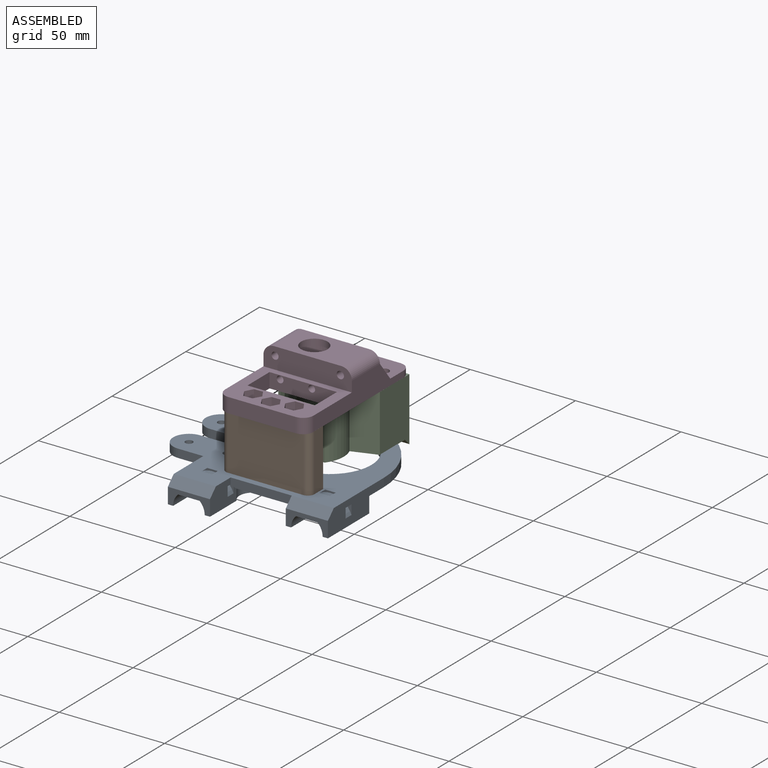
[diagram: assembled view]
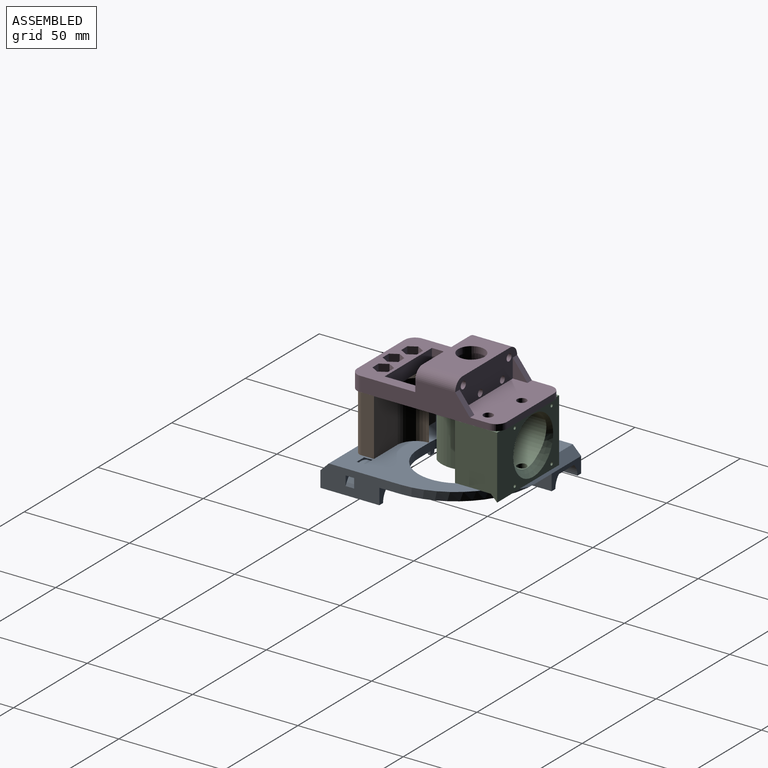
[diagram: assembled view, second angle]
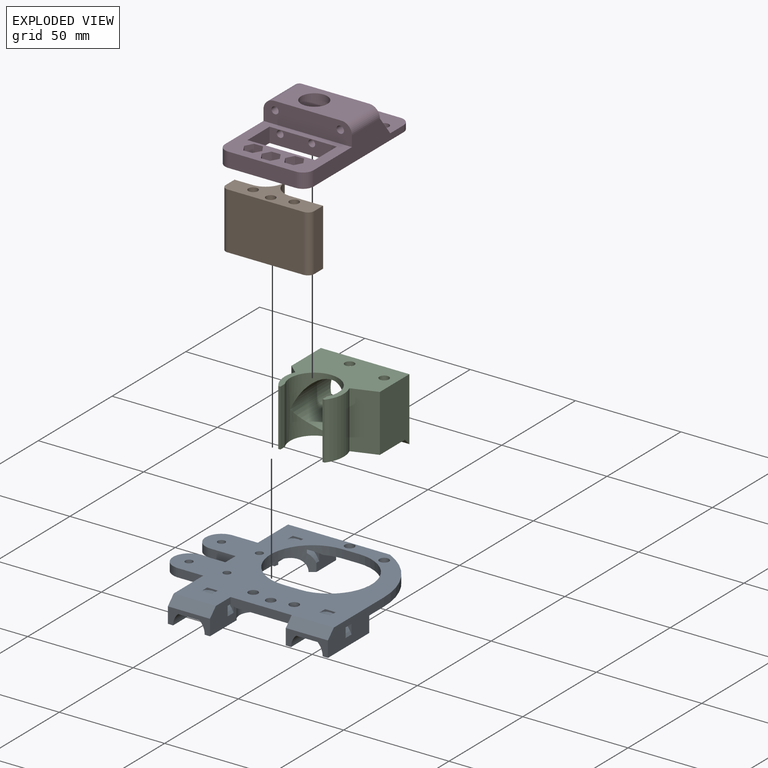
[diagram: exploded view]
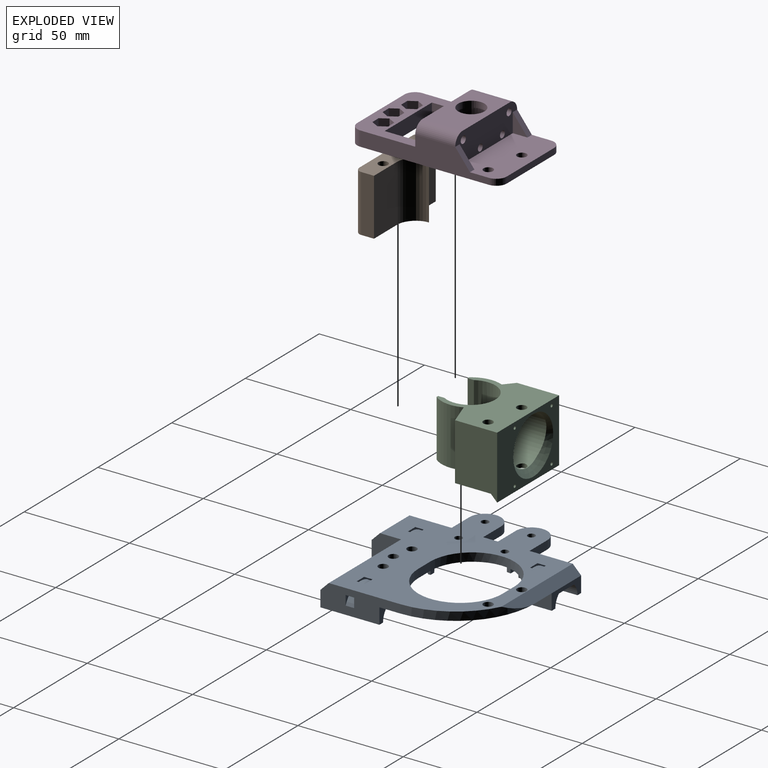
[diagram: exploded view, second angle]
ASSEMBLY  parts=4 mates=2
PART A: 107 faces, bbox 88.6x85.6x11.6 mm
  f0: plane 11.5x8.06mm, normal (-1,0,0), area 68.5mm2, adj f11,f20,f24,f25,f58,f105
  f1: plane 11.06x7.5mm, normal (-1,0,0), area 83mm2, adj f11,f20,f42,f105
  f2: plane 18.06x11.5mm, normal (1,0,0), area 167.3mm2, adj f11,f12,f23,f24,f41,f59,f66,f67
  f3: plane 7.5x1.06mm, normal (1,0,0), area 8mm2, adj f11,f40,f41,f106
  f4: plane 22.5x7.56mm, normal (0,1,0), area 27.9mm2, adj f6,f11,f12,f26,f71,f72,f105
  f5: plane 22.5x7.56mm, normal (0,-1,0), area 29.2mm2, adj f6,f11,f12,f26,f71,f72,f105
  f6: cylinder r=10.75mm len=19.27mm, axis (0,1,0), area 90.9mm2, adj f4,f5,f26,f105
  f7: cylinder r=1.75mm len=3.5mm, axis (0,0,1), area 22mm2, adj f12,f77
  f8: cylinder r=1.75mm len=3.5mm, axis (0,0,1), area 22mm2, adj f12,f98
  f9: cylinder r=1.75mm len=3.5mm, axis (0,0,1), area 22mm2, adj f12,f91
  f10: cylinder r=1.75mm len=3.5mm, axis (0,0,1), area 22mm2, adj f12,f84
  f11: plane 88.5x71.5mm, normal (0,0,-1), area 2174.4mm2, adj f0,f1,f2,f3,f4,f5,f13,f15
  f12: plane 88.5x77.5mm, normal (0,0,1), area 3442.3mm2, adj f2,f4,f5,f7,f8,f9,f10,f15
  f13: plane 13.33x7.5mm, normal (1,0,0), area 93.5mm2, adj f11,f14,f45,f62,f65,f76
  f14: plane 20x7.5mm, normal (0,1,0), area 75.6mm2, adj f13,f18,f21,f27,f45,f52,f60
  f15: cylinder r=37.5mm len=37.5mm, axis (0,0,1), area 189.2mm2, adj f11,f12,f26,f60
  f16: cylinder r=7.5mm len=28mm, axis (0,-1,0), area 614.9mm2, adj f20,f25,f42,f43,f46,f47,f56,f57
  f17: cylinder r=7.5mm len=28mm, axis (0,-1,0), area 614.9mm2, adj f19,f23,f40,f41,f48,f49,f54,f55
  f18: cylinder r=7.5mm len=28mm, axis (0,-1,0), area 514mm2, adj f14,f21,f44,f45,f50,f51,f52,f53
  f19: plane 28x2.5mm, normal (0,0,-1), area 70mm2, adj f17,f22,f23,f40
  f20: plane 28x2.5mm, normal (0,0,-1), area 59.3mm2, adj f0,f1,f16,f25,f42,f105
  f21: plane 28x2.5mm, normal (0,0,-1), area 70mm2, adj f14,f18,f27,f44
  f22: plane 28x11.5mm, normal (-1,0,0), area 279.8mm2, adj f11,f12,f19,f23,f39,f40,f59,f66
  f23: plane 20x7.5mm, normal (0,-1,0), area 75.6mm2, adj f2,f17,f19,f22,f41,f48,f59
  f24: plane 29x4mm, normal (0,-1,0), area 114.7mm2, adj f0,f2,f11,f12,f67
  f25: plane 20x7.5mm, normal (0,-1,0), area 75.6mm2, adj f0,f16,f20,f26,f43,f46,f58
  f26: plane 38x11.5mm, normal (1,0,0), area 335.8mm2, adj f4,f5,f6,f11,f12,f15,f25,f42
  f27: plane 28x11.5mm, normal (-1,0,0), area 281.8mm2, adj f11,f12,f14,f21,f28,f44,f60,f61
  f28: plane 12x4mm, normal (0,1,0), area 48mm2, adj f11,f12,f27,f29
  f29: cylinder r=7.5mm len=15mm, axis (0,0,1), area 94.2mm2, adj f11,f12,f28,f30
  f30: plane 12x4mm, normal (0,-1,0), area 48mm2, adj f11,f12,f29,f31
  f31: plane 7x4mm, normal (-1,0,0), area 28mm2, adj f11,f12,f30,f32
  f32: plane 12x4mm, normal (0,1,0), area 48mm2, adj f11,f12,f31,f33
  f33: cylinder r=7.5mm len=15mm, axis (0,0,1), area 94.2mm2, adj f11,f12,f32,f39
  f34: cylinder r=2.25mm len=4.5mm, axis (0,0,1), area 56.5mm2, adj f11,f12
  f35: cylinder r=2.25mm len=4.5mm, axis (0,0,1), area 56.5mm2, adj f11,f12
  f36: cylinder r=2.25mm len=4.5mm, axis (0,0,1), area 56.5mm2, adj f11,f12
  f37: cylinder r=2.25mm len=4.5mm, axis (0,0,1), area 56.5mm2, adj f11,f12
  f38: cylinder r=2.25mm len=4.5mm, axis (0,0,1), area 56.5mm2, adj f11,f12
  f39: plane 12x4mm, normal (0,-1,0), area 48mm2, adj f11,f12,f22,f33
  f40: plane 20x7.5mm, normal (0,1,0), area 75.6mm2, adj f3,f11,f17,f19,f22,f41,f55
  f41: plane 28x2.5mm, normal (0,0,-1), area 59.3mm2, adj f2,f3,f17,f23,f40,f106
  f42: plane 20x7.5mm, normal (0,1,0), area 75.6mm2, adj f1,f11,f16,f20,f26,f43,f57
  f43: plane 28x2.5mm, normal (0,0,-1), area 70mm2, adj f16,f25,f26,f42
  f44: plane 10.41x7.5mm, normal (0,-1,0), area 38.6mm2, adj f11,f18,f21,f27,f50,f76
  f45: plane 15.09x2.5mm, normal (0,0,-1), area 35.4mm2, adj f13,f14,f18,f76
  f46: plane 10.2x2mm, normal (0,0,-1), area 20.4mm2, adj f16,f25,f47
  f47: plane 10.2x2mm, normal (0,1,0), area 14mm2, adj f16,f46
  f48: plane 10.2x2mm, normal (0,0,-1), area 20.4mm2, adj f17,f23,f49
  f49: plane 10.2x2mm, normal (0,1,0), area 14mm2, adj f17,f48
  f50: plane 5.86x2mm, normal (0,0,-1), area 11.3mm2, adj f18,f44,f51,f76
  f51: plane 5.86x2mm, normal (0,1,0), area 8.5mm2, adj f18,f50,f76
  f52: plane 10.2x2mm, normal (0,0,-1), area 20.4mm2, adj f14,f18,f53
  f53: plane 10.2x2mm, normal (0,-1,0), area 14mm2, adj f18,f52
  f54: plane 10.2x2mm, normal (0,-1,0), area 14mm2, adj f17,f55
  f55: plane 10.2x2mm, normal (0,0,-1), area 20.4mm2, adj f17,f40,f54
  f56: plane 10.2x2mm, normal (0,-1,0), area 14mm2, adj f16,f57
  f57: plane 10.2x2mm, normal (0,0,-1), area 20.4mm2, adj f16,f42,f56
  f58: plane 20x4mm, normal (0,-0.71,0.71), area 113.1mm2, adj f0,f12,f25,f26
  f59: plane 20x4mm, normal (0,-0.71,0.71), area 113.1mm2, adj f2,f12,f22,f23
  f60: plane 48.35x4mm, normal (0,0.71,0.71), area 242.5mm2, adj f11,f12,f14,f15,f27
  f61: plane 7.5x4mm, normal (0.37,0,-0.93), area 32.3mm2, adj f12,f27,f64,f65
  f62: cylinder r=10.75mm len=20mm, axis (0,1,0), area 96.1mm2, adj f13,f27,f64,f65,f76
  f63: plane 10.11x4.11mm, normal (-0.37,0,-0.93), area 31.7mm2, adj f11,f12,f64,f65,f76
  f64: plane 17.02x7.56mm, normal (0,1,0), area 21.9mm2, adj f12,f27,f61,f62,f63,f76
  f65: plane 22.5x7.56mm, normal (0,-1,0), area 31.2mm2, adj f11,f12,f13,f27,f61,f62,f63
  f66: plane 20x7.56mm, normal (0,1,0), area 29.9mm2, adj f2,f12,f22,f67,f68,f69
  f67: plane 10x4mm, normal (-0.37,0,-0.93), area 37.7mm2, adj f2,f11,f12,f24,f66,f70
  f68: plane 7.5x4mm, normal (0.37,0,-0.93), area 32.3mm2, adj f12,f22,f66,f70
  f69: cylinder r=10.75mm len=20mm, axis (0,1,0), area 102.8mm2, adj f2,f22,f66,f70
  f70: plane 22.5x7.56mm, normal (0,-1,0), area 31.2mm2, adj f2,f11,f12,f22,f67,f68,f69
  f71: plane 7.5x4mm, normal (-0.37,0,-0.93), area 32.3mm2, adj f4,f5,f12,f26
  f72: plane 10x4mm, normal (0.37,0,-0.93), area 43.1mm2, adj f4,f5,f11,f12
  f73: plane 8x4mm, normal (0,1,0), area 32mm2, adj f11,f12,f74,f76
  f74: cylinder r=20mm len=40mm, axis (0,0,1), area 251.3mm2, adj f11,f12,f73,f75
  f75: plane 8x4mm, normal (0,-1,0), area 32mm2, adj f11,f12,f74,f76
  f76: cylinder r=20mm len=40mm, axis (0,0,1), area 285.4mm2, adj f11,f12,f13,f18,f44,f45,f50,f51
  f77: plane 6.5x5.63mm, normal (0,0,-1), area 17.8mm2, adj f7,f78,f79,f80,f81,f82,f83
  f78: plane 3.25x2mm, normal (0,-1,0), area 6.5mm2, adj f11,f77,f79,f83
  f79: plane 2.81x2mm, normal (-0.87,-0.5,0), area 6.5mm2, adj f11,f77,f78,f80
  f80: plane 2.81x2mm, normal (-0.87,0.5,0), area 6.5mm2, adj f11,f77,f79,f81
  f81: plane 3.25x2mm, normal (0,1,0), area 6.5mm2, adj f11,f77,f80,f82
  f82: plane 2.81x2mm, normal (0.87,0.5,0), area 6.5mm2, adj f11,f77,f81,f83
  f83: plane 2.81x2mm, normal (0.87,-0.5,0), area 6.5mm2, adj f11,f77,f78,f82
  f84: plane 6.5x5.63mm, normal (0,0,-1), area 17.8mm2, adj f10,f85,f86,f87,f88,f89,f90
  f85: plane 2.81x2mm, normal (-0.87,-0.5,0), area 6.5mm2, adj f11,f84,f86,f90
  f86: plane 2.81x2mm, normal (-0.87,0.5,0), area 6.5mm2, adj f11,f84,f85,f87
  f87: plane 3.25x2mm, normal (0,1,0), area 6.5mm2, adj f11,f84,f86,f88
  f88: plane 2.81x2mm, normal (0.87,0.5,0), area 6.5mm2, adj f11,f84,f87,f89
  f89: plane 2.81x2mm, normal (0.87,-0.5,0), area 6.5mm2, adj f11,f84,f88,f90
  f90: plane 3.25x2mm, normal (0,-1,0), area 6.5mm2, adj f11,f84,f85,f89
  f91: plane 6.5x5.63mm, normal (0,0,-1), area 17.8mm2, adj f9,f92,f93,f94,f95,f96,f97
  f92: plane 2.81x2mm, normal (-0.87,-0.5,0), area 6.5mm2, adj f11,f91,f93,f97
  f93: plane 2.81x2mm, normal (-0.87,0.5,0), area 6.5mm2, adj f11,f91,f92,f94
  f94: plane 3.25x2mm, normal (0,1,0), area 6.5mm2, adj f11,f91,f93,f95
  f95: plane 2.81x2mm, normal (0.87,0.5,0), area 6.5mm2, adj f11,f91,f94,f96
  f96: plane 2.81x2mm, normal (0.87,-0.5,0), area 6.5mm2, adj f11,f91,f95,f97
  f97: plane 3.25x2mm, normal (0,-1,0), area 6.5mm2, adj f11,f91,f92,f96
  f98: plane 6.5x5.63mm, normal (0,0,-1), area 17.8mm2, adj f8,f99,f100,f101,f102,f103,f104
  f99: plane 2.81x2mm, normal (-0.87,-0.5,0), area 6.5mm2, adj f11,f98,f100,f104
  f100: plane 2.81x2mm, normal (-0.87,0.5,0), area 6.5mm2, adj f11,f98,f99,f101
  f101: plane 3.25x2mm, normal (0,1,0), area 6.5mm2, adj f11,f98,f100,f102
  f102: plane 2.81x2mm, normal (0.87,0.5,0), area 6.5mm2, adj f11,f98,f101,f103
  f103: plane 2.81x2mm, normal (0.87,-0.5,0), area 6.5mm2, adj f11,f98,f102,f104
  f104: plane 3.25x2mm, normal (0,-1,0), area 6.5mm2, adj f11,f98,f99,f103
  f105: cylinder r=6.5mm len=8.87mm, axis (0,0,1), area 69mm2, adj f0,f1,f4,f5,f6,f11,f20
  f106: cylinder r=6.5mm len=8.87mm, axis (0,0,1), area 73.3mm2, adj f2,f3,f11,f41
PART B: 14 faces, bbox 42x18x27 mm
  f0: plane 27x16.19mm, normal (0,1,0), area 437mm2, adj f1,f8,f10,f11
  f1: cylinder r=9.02mm len=27mm, axis (0,0,-1), area 363.2mm2, adj f0,f2,f10,f11
  f2: cylinder r=9.02mm len=27mm, axis (0,0,-1), area 376.7mm2, adj f1,f3,f10,f11
  f3: plane 27x8.7mm, normal (0,1,0), area 234.8mm2, adj f2,f4,f10,f11
  f4: plane 27x5.94mm, normal (-1,0,0), area 160.3mm2, adj f3,f10,f11,f12
  f5: plane 36x27mm, normal (0,-1,0), area 972.1mm2, adj f10,f11,f12,f13
  f6: cylinder r=2.25mm len=27mm, axis (0,0,-1), area 381.7mm2, adj f10,f11
  f7: cylinder r=2.25mm len=27mm, axis (0,0,-1), area 381.7mm2, adj f10,f11
  f8: plane 27x6mm, normal (1,0,0), area 161.9mm2, adj f0,f10,f11,f13
  f9: cylinder r=2.25mm len=27mm, axis (0,0,-1), area 381.7mm2, adj f10,f11
  f10: plane 42x17.96mm, normal (0,0,1), area 359.7mm2, adj f0,f1,f2,f3,f4,f5,f6,f7
  f11: plane 42x17.96mm, normal (0,0,-1), area 359.7mm2, adj f0,f1,f2,f3,f4,f5,f6,f7
  f12: cylinder r=3mm len=27mm, axis (0,0,1), area 127.2mm2, adj f4,f5,f10,f11
  f13: cylinder r=3mm len=27mm, axis (0,0,1), area 127.4mm2, adj f5,f8,f10,f11
PART C: 29 faces, bbox 38.2x42x30 mm
  f0: cylinder r=2.25mm len=4.5mm, axis (0,0,-1), area 29.8mm2, adj f15,f20
  f1: plane 27x1mm, normal (-1,0,0), area 27mm2, adj f2,f14,f15,f16
  f2: cylinder r=14mm len=27mm, axis (0,0,-1), area 405.2mm2, adj f1,f3,f15,f16
  f3: plane 27x11.63mm, normal (-0.95,-0.32,0), area 332mm2, adj f2,f4,f15,f16
  f4: plane 30x20mm, normal (0,-1,0), area 544.5mm2, adj f3,f5,f15,f16,f17
  f5: plane 42x30mm, normal (1,0,0), area 680.2mm2, adj f4,f6,f15,f17,f19,f22,f24,f25
  f6: plane 30x19.97mm, normal (0,1,0), area 543.7mm2, adj f5,f7,f15,f16,f17
  f7: plane 27x4.63mm, normal (-0.76,0.65,0), area 165.5mm2, adj f6,f8,f15,f16
  f8: cylinder r=14mm len=27mm, axis (0,0,-1), area 405.2mm2, adj f7,f9,f15,f16
  f9: plane 27x1mm, normal (-1,0,0), area 27mm2, adj f8,f10,f15,f16
  f10: plane 27x2.98mm, normal (0,-1,0), area 80.5mm2, adj f9,f11,f15,f16
  f11: cylinder r=11.5mm len=27mm, axis (0,0,-1), area 764.7mm2, adj f10,f14,f15,f16,f18,f20
  f12: cylinder r=2.25mm len=4.5mm, axis (0,0,-1), area 26.4mm2, adj f16,f18
  f13: cylinder r=2.25mm len=27mm, axis (0,0,-1), area 381.7mm2, adj f15,f16
  f14: plane 27x2.98mm, normal (0,1,0), area 80.5mm2, adj f1,f11,f15,f16
  f15: plane 42x38.16mm, normal (0,0,1), area 926.9mm2, adj f0,f1,f2,f3,f4,f5,f6,f7
  f16: plane 42x35.16mm, normal (0,0,-1), area 785.3mm2, adj f1,f2,f3,f4,f6,f7,f8,f9
  f17: plane 42.04x3.04mm, normal (-0.71,0,-0.71), area 173.7mm2, adj f4,f5,f6,f16,f22,f24
  f18: cylinder r=10.5mm len=17.09mm, axis (1,0,0), area 208.6mm2, adj f11,f12,f19,f20
  f19: cone r=10.5mm half-angle=45deg, axis (1,0,0), area 219mm2, adj f5,f18,f20
  f20: cylinder r=11.5mm len=28.75mm, axis (1,0,0), area 1225.6mm2, adj f0,f11,f18,f19
  f21: plane 1.12x0.25mm, normal (1,0,0), area 0.2mm2, adj f16,f22
  f22: cylinder r=0.75mm len=10mm, axis (1,0,0), area 20.4mm2, adj f5,f16,f17,f21
  f23: plane 1.12x0.25mm, normal (1,0,0), area 0.2mm2, adj f16,f24
  f24: cylinder r=0.75mm len=10mm, axis (1,0,0), area 20.4mm2, adj f5,f16,f17,f23
  f25: cylinder r=0.75mm len=10mm, axis (1,0,0), area 47.1mm2, adj f5,f26
  f26: plane 1.5x1.5mm, normal (1,0,0), area 1.8mm2, adj f25
  f27: cylinder r=0.75mm len=10mm, axis (1,0,0), area 47.1mm2, adj f5,f28
  f28: plane 1.5x1.5mm, normal (1,0,0), area 1.8mm2, adj f27
PART D: 57 faces, bbox 42x71x17 mm
  f0: cylinder r=2.25mm len=4.5mm, axis (0,0,-1), area 42.4mm2, adj f12,f42
  f1: cylinder r=2.25mm len=4.5mm, axis (0,0,-1), area 42.4mm2, adj f12,f56
  f2: cylinder r=2.25mm len=4.5mm, axis (0,0,-1), area 42.4mm2, adj f12,f49
  f3: plane 42x31mm, normal (0,0,1), area 670.5mm2, adj f5,f6,f7,f8,f9,f10,f11,f13
  f4: cylinder r=6.25mm len=12.5mm, axis (0,0,-1), area 117.8mm2, adj f19,f33
  f5: plane 61x12mm, normal (-1,0,0), area 489.5mm2, adj f3,f12,f13,f17,f20,f22,f24,f26
  f6: plane 32x7mm, normal (0,-1,0), area 224mm2, adj f3,f12,f20,f21
  f7: plane 15x7mm, normal (1,0,0), area 105mm2, adj f3,f8,f10,f12
  f8: plane 32x7mm, normal (0,-1,0), area 207.4mm2, adj f3,f7,f9,f12,f34,f35
  f9: plane 15x7mm, normal (-1,0,0), area 105mm2, adj f3,f8,f10,f12
  f10: plane 32x7mm, normal (0,1,0), area 224mm2, adj f3,f7,f9,f12
  f11: plane 61x12mm, normal (1,0,0), area 489.5mm2, adj f3,f12,f13,f17,f21,f23,f25,f28
  f12: plane 71x42mm, normal (0,0,-1), area 2187.2mm2, adj f0,f1,f2,f5,f6,f7,f8,f9
  f13: plane 42x10mm, normal (0,-1,0), area 390.8mm2, adj f3,f5,f11,f19,f22,f23,f30,f31
  f14: plane 32x3mm, normal (0,1,0), area 96mm2, adj f12,f17,f24,f25
  f15: cylinder r=2.25mm len=4.5mm, axis (0,0,-1), area 42.4mm2, adj f12,f17
  f16: cylinder r=2.25mm len=4.5mm, axis (0,0,-1), area 42.4mm2, adj f12,f17
  f17: plane 42x21mm, normal (0,0,1), area 797.5mm2, adj f5,f11,f14,f15,f16,f18,f24,f25
  f18: plane 42x14mm, normal (0,1,0), area 488.2mm2, adj f17,f19,f22,f23,f26,f27,f28,f29
  f19: plane 32x19mm, normal (0,0,1), area 485.3mm2, adj f4,f13,f18,f22,f23
  f20: cylinder r=5mm len=7mm, axis (0,0,-1), area 55mm2, adj f3,f5,f6,f12
  f21: cylinder r=5mm len=7mm, axis (0,0,1), area 55mm2, adj f3,f6,f11,f12
  f22: cylinder r=5mm len=19mm, axis (0,1,0), area 149.2mm2, adj f5,f13,f18,f19
  f23: cylinder r=5mm len=19mm, axis (0,-1,0), area 149.2mm2, adj f11,f13,f18,f19
  f24: cylinder r=5mm len=5mm, axis (0,0,1), area 23.6mm2, adj f5,f12,f14,f17
  f25: cylinder r=5mm len=5mm, axis (0,0,-1), area 23.6mm2, adj f11,f12,f14,f17
  f26: plane 9x7mm, normal (0,0.79,0.61), area 34.2mm2, adj f5,f17,f18,f27
  f27: plane 9x7mm, normal (1,0,0), area 31.5mm2, adj f17,f18,f26
  f28: plane 9x7mm, normal (0,0.79,0.61), area 34.2mm2, adj f11,f17,f18,f29
  f29: plane 9x7mm, normal (-1,0,0), area 31.5mm2, adj f17,f18,f28
  f30: cylinder r=1.75mm len=19mm, axis (0,-1,0), area 208.9mm2, adj f13,f18
  f31: cylinder r=1.68mm len=19mm, axis (0,-1,0), area 200.2mm2, adj f13,f18
  f32: cylinder r=8.25mm len=16.5mm, axis (0,0,-1), area 651.9mm2, adj f12,f33,f34,f35
  f33: plane 16.5x16.5mm, normal (0,0,-1), area 91.1mm2, adj f4,f32
  f34: cylinder r=1.62mm len=22mm, axis (0,1,0), area 165.8mm2, adj f8,f18,f32
  f35: cylinder r=1.62mm len=22mm, axis (0,1,0), area 165.9mm2, adj f8,f18,f32
  f36: plane 4.25x4mm, normal (0.02,-1,0), area 17mm2, adj f3,f37,f41,f42
  f37: plane 4x3.72mm, normal (0.87,-0.48,0), area 17mm2, adj f3,f36,f38,f42
  f38: plane 4x3.64mm, normal (0.86,0.52,0), area 17mm2, adj f3,f37,f39,f42
  f39: plane 4.25x4mm, normal (-0.02,1,0), area 17mm2, adj f3,f38,f40,f42
  f40: plane 4x3.72mm, normal (-0.87,0.48,0), area 17mm2, adj f3,f39,f41,f42
  f41: plane 4x3.64mm, normal (-0.86,-0.52,0), area 17mm2, adj f3,f36,f40,f42
  f42: plane 8.5x7.43mm, normal (0,0,1), area 31mm2, adj f0,f36,f37,f38,f39,f40,f41
  f43: plane 4.25x4mm, normal (0.01,-1,0), area 17mm2, adj f3,f44,f48,f49
  f44: plane 4x3.71mm, normal (0.87,-0.49,0), area 17mm2, adj f3,f43,f45,f49
  f45: plane 4x3.65mm, normal (0.86,0.51,0), area 17mm2, adj f3,f44,f46,f49
  f46: plane 4.25x4mm, normal (-0.01,1,0), area 17mm2, adj f3,f45,f47,f49
  f47: plane 4x3.71mm, normal (-0.87,0.49,0), area 17mm2, adj f3,f46,f48,f49
  f48: plane 4x3.65mm, normal (-0.86,-0.51,0), area 17mm2, adj f3,f43,f47,f49
  f49: plane 8.5x7.41mm, normal (0,0,1), area 31mm2, adj f2,f43,f44,f45,f46,f47,f48
  f50: plane 4.25x4mm, normal (0.02,-1,0), area 17mm2, adj f3,f51,f55,f56
  f51: plane 4x3.72mm, normal (0.87,-0.48,0), area 17mm2, adj f3,f50,f52,f56
  f52: plane 4x3.64mm, normal (0.86,0.52,0), area 17mm2, adj f3,f51,f53,f56
  f53: plane 4.25x4mm, normal (-0.02,1,0), area 17mm2, adj f3,f52,f54,f56
  f54: plane 4x3.72mm, normal (-0.87,0.48,0), area 17mm2, adj f3,f53,f55,f56
  f55: plane 4x3.64mm, normal (-0.86,-0.52,0), area 17mm2, adj f3,f50,f54,f56
  f56: plane 8.5x7.43mm, normal (0,0,1), area 31mm2, adj f1,f50,f51,f52,f53,f54,f55
PLACE A t=(-9.56,-1.72,-24.05)mm
PLACE B t=(24.94,-42.22,-24.05)mm
PLACE C rot(axis=(0,0,1),90deg) t=(21.44,-7.75,-24.14)mm
PLACE D rot(axis=(1,0,0),0deg) t=(24.93,-17.17,2.86)mm
MATE planar D.f12 <-> C.f15  axis (0,0,-1) through (25.18,-9.65,2.86)mm
MATE planar B.f7 <-> A.f35  axis (0,0,-1) through (24.94,-42.22,-24.05)mm
